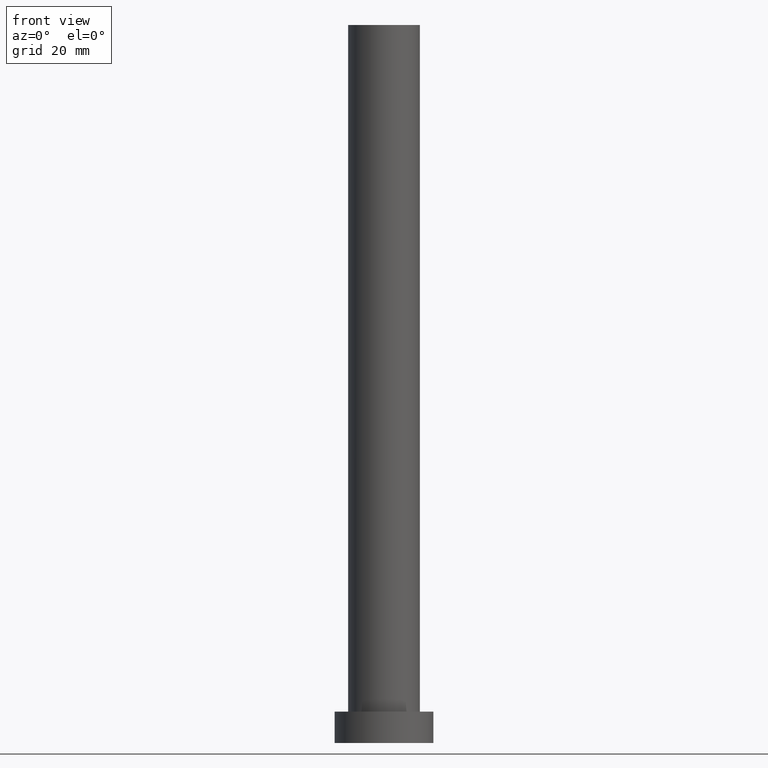
[diagram: clean part render]
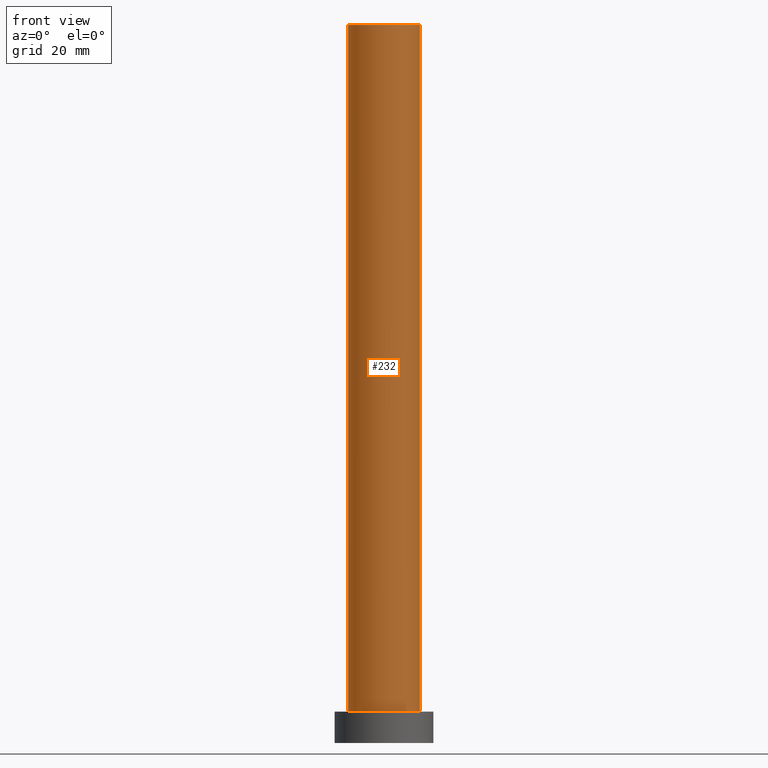
[diagram: same view with one face highlighted and labeled with its STEP entity id]
A machine part, front view. The second image highlights one B-rep face of the part: STEP entity #232.
In plain terms, the highlighted cylindrical surface (edge-blend (fillet) strip) has radius 8 mm, axis along (-0, -0, -1).
Its self-contained STEP definition (entity closure, byte-faithful):
#7 = EDGE_CURVE ( 'NONE', #53, #96, #40, .T. ) ;
#8 = CARTESIAN_POINT ( 'NONE',  ( -8.000000000000000000, 0.000000000000000000, 7.000000000000000000 ) ) ;
#11 = DIRECTION ( 'NONE',  ( -1.000000000000000000, 0.000000000000000000, 0.000000000000000000 ) ) ;
#24 = CARTESIAN_POINT ( 'NONE',  ( 8.000000000000000000, 9.797174393178825657E-16, 160.0000000000000000 ) ) ;
#35 = VECTOR ( 'NONE', #125, 1000.000000000000000 ) ;
#40 = LINE ( 'NONE', #238, #78 ) ;
#45 = CYLINDRICAL_SURFACE ( 'NONE', #246, 8.000000000000000000 ) ;
#53 = VERTEX_POINT ( 'NONE', #24 ) ;
#67 = DIRECTION ( 'NONE',  ( 1.000000000000000000, 0.000000000000000000, 0.000000000000000000 ) ) ;
#70 = CARTESIAN_POINT ( 'NONE',  ( -8.000000000000000000, 0.000000000000000000, 160.0000000000000000 ) ) ;
#78 = VECTOR ( 'NONE', #218, 1000.000000000000000 ) ;
#84 = EDGE_CURVE ( 'NONE', #177, #134, #158, .T. ) ;
#88 = CARTESIAN_POINT ( 'NONE',  ( 0.000000000000000000, 0.000000000000000000, 7.000000000000000000 ) ) ;
#96 = VERTEX_POINT ( 'NONE', #157 ) ;
#103 = DIRECTION ( 'NONE',  ( 0.000000000000000000, 0.000000000000000000, 1.000000000000000000 ) ) ;
#114 = CIRCLE ( 'NONE', #173, 8.000000000000000000 ) ;
#116 = ORIENTED_EDGE ( 'NONE', *, *, #84, .T. ) ;
#120 = EDGE_CURVE ( 'NONE', #177, #53, #114, .T. ) ;
#122 = CARTESIAN_POINT ( 'NONE',  ( 0.000000000000000000, 0.000000000000000000, 160.0000000000000000 ) ) ;
#125 = DIRECTION ( 'NONE',  ( -0.000000000000000000, -0.000000000000000000, -1.000000000000000000 ) ) ;
#131 = CARTESIAN_POINT ( 'NONE',  ( 0.000000000000000000, 0.000000000000000000, 160.0000000000000000 ) ) ;
#133 = AXIS2_PLACEMENT_3D ( 'NONE', #88, #167, #67 ) ;
#134 = VERTEX_POINT ( 'NONE', #8 ) ;
#145 = CARTESIAN_POINT ( 'NONE',  ( -8.000000000000000000, 0.000000000000000000, 160.0000000000000000 ) ) ;
#156 = ORIENTED_EDGE ( 'NONE', *, *, #7, .F. ) ;
#157 = CARTESIAN_POINT ( 'NONE',  ( 8.000000000000000000, 9.797174393178825657E-16, 7.000000000000000000 ) ) ;
#158 = LINE ( 'NONE', #145, #35 ) ;
#167 = DIRECTION ( 'NONE',  ( 0.000000000000000000, 0.000000000000000000, 1.000000000000000000 ) ) ;
#173 = AXIS2_PLACEMENT_3D ( 'NONE', #122, #103, #182 ) ;
#177 = VERTEX_POINT ( 'NONE', #70 ) ;
#182 = DIRECTION ( 'NONE',  ( 1.000000000000000000, 0.000000000000000000, 0.000000000000000000 ) ) ;
#187 = DIRECTION ( 'NONE',  ( -0.000000000000000000, -0.000000000000000000, -1.000000000000000000 ) ) ;
#215 = EDGE_LOOP ( 'NONE', ( #156, #255, #116, #216 ) ) ;
#216 = ORIENTED_EDGE ( 'NONE', *, *, #241, .T. ) ;
#218 = DIRECTION ( 'NONE',  ( -0.000000000000000000, -0.000000000000000000, -1.000000000000000000 ) ) ;
#229 = FACE_OUTER_BOUND ( 'NONE', #215, .T. ) ;
#231 = CIRCLE ( 'NONE', #133, 8.000000000000000000 ) ;
#232 = ADVANCED_FACE ( 'NONE', ( #229 ), #45, .T. ) ;
#238 = CARTESIAN_POINT ( 'NONE',  ( 8.000000000000000000, 9.797174393178825657E-16, 160.0000000000000000 ) ) ;
#241 = EDGE_CURVE ( 'NONE', #134, #96, #231, .T. ) ;
#246 = AXIS2_PLACEMENT_3D ( 'NONE', #131, #187, #11 ) ;
#255 = ORIENTED_EDGE ( 'NONE', *, *, #120, .F. ) ;